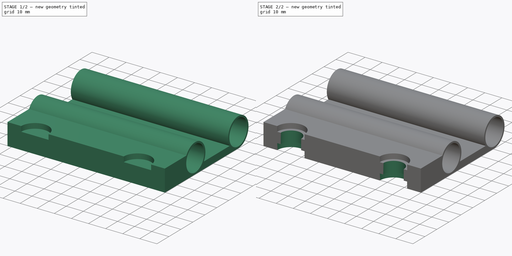
[diagram: build sequence overview — one tinted view per stage of 2, left to right]
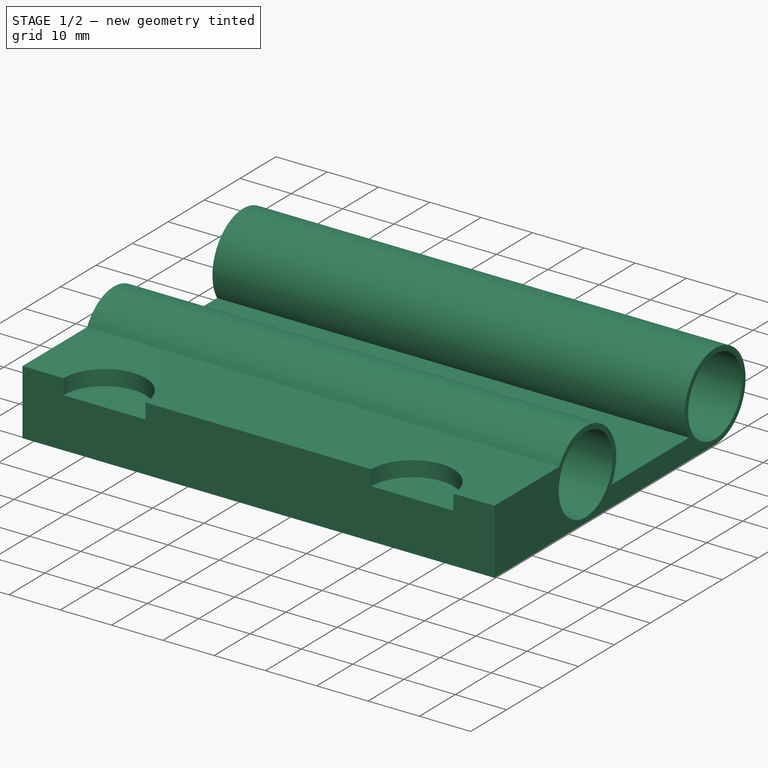
[diagram: stage 1 of 2 — iso view after this stage's code; geometry added in this stage tinted green]
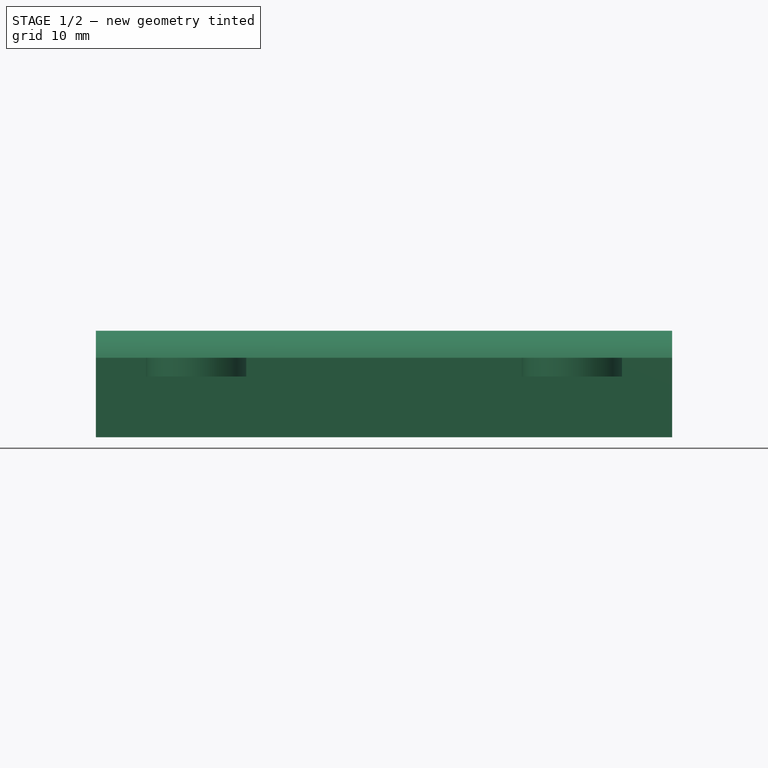
[diagram: stage 1 of 2 — front view after this stage's code; geometry added in this stage tinted green]
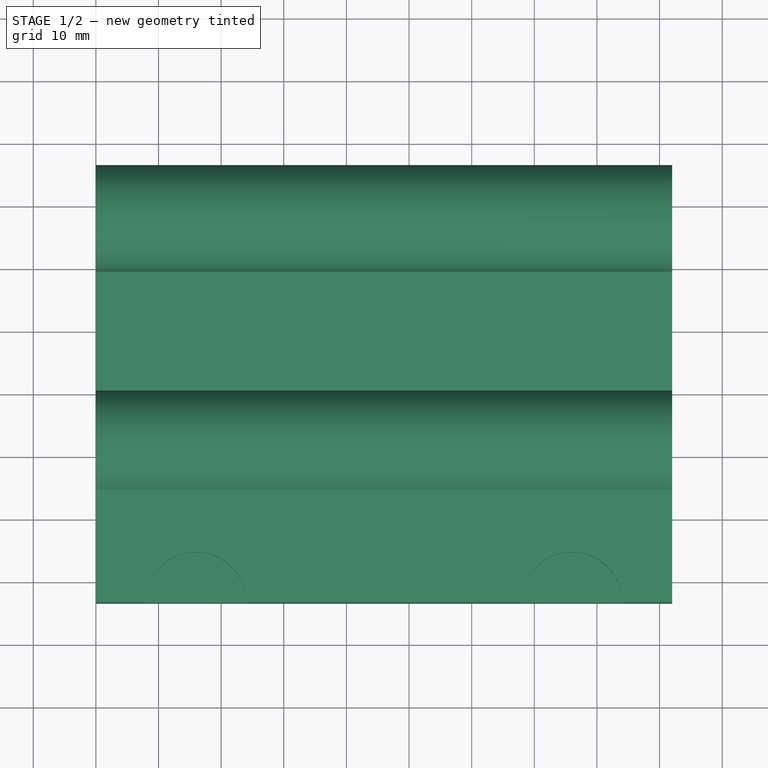
[diagram: stage 1 of 2 — top view after this stage's code; geometry added in this stage tinted green]
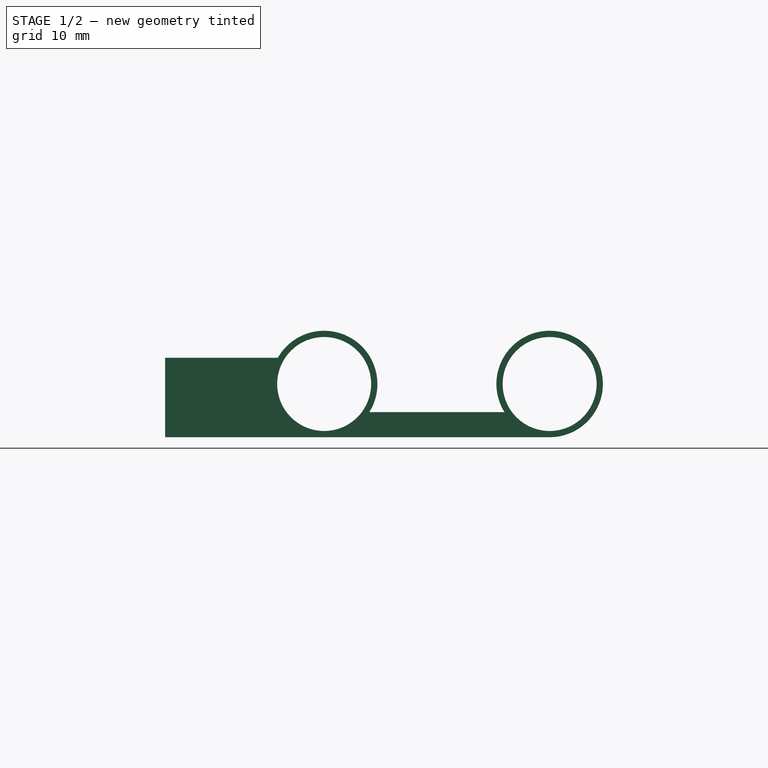
[diagram: stage 1 of 2 — right view after this stage's code; geometry added in this stage tinted green]
FCSTD DOCUMENT  (FreeCAD 0.16RUnknown)
Label: xCarriage-Hotend-pt1
License: All rights reserved
LicenseURL: http://en.wikipedia.org/wiki/All_rights_reserved
objects: Sketcher::SketchObject×4, PartDesign::Pocket×3, PartDesign::Pad×1, App::MeasureDistance×1
note: 12 computed .brp shape members not serialized (recipe doc carries the construction recipe); baked Part::Feature solids carry a one-line shape summary decoded from their .brp

FEATURE [Sketcher::SketchObject] Sketch
  Placement = pos=(0,0,0) rot=(0.57735,0.57735,0.57735;2.0944rad)
  sketch-geometry (10):
    g0: LineSegment StartX=-25.3899 StartY=-4.25 StartZ=0 EndX=18 EndY=-4.25 EndZ=0
    g1: LineSegment StartX=-10.7889 StartY=-0.25 StartZ=0 EndX=10.7889 EndY=-0.25 EndZ=0
    g2: ArcOfCircle CenterX=18 CenterY=4.25 CenterZ=0 NormalX=0 NormalY=0 NormalZ=1 Radius=8.5 StartAngle=4.71239 EndAngle=9.98269
    g3: LineSegment StartX=-25.3899 StartY=-4.25 StartZ=0 EndX=-43.3899 EndY=-4.25 EndZ=0
    g4: LineSegment StartX=-43.3899 StartY=-4.25 StartZ=0 EndX=-43.3899 EndY=8.45 EndZ=0
    g5: LineSegment StartX=-43.3899 StartY=8.45 StartZ=0 EndX=-25.3899 EndY=8.45 EndZ=0
    g6: ArcOfCircle CenterX=-18 CenterY=4.25 CenterZ=0 NormalX=0 NormalY=0 NormalZ=1 Radius=8.5 StartAngle=5.72528 EndAngle=8.90796
    g7: LineSegment [constr] StartX=-18 StartY=4.25 StartZ=0 EndX=18 EndY=4.25 EndZ=0
    g8: Circle CenterX=-18 CenterY=4.25 CenterZ=0 NormalX=0 NormalY=0 NormalZ=1 Radius=7.5
    g9: Circle CenterX=18 CenterY=4.25 CenterZ=0 NormalX=0 NormalY=0 NormalZ=1 Radius=7.5
  constraints (29):
    c: Horizontal(g0)
    c: Horizontal(g1)
    c: Coincident(g2,g0)
    c: Coincident(g2,g1)
    c: Coincident(g0,g3)
    c: Horizontal(g3)
    c: Coincident(g3,g4)
    c: Coincident(g4,g5)
    c: Coincident(g6,g5)
    c: Coincident(g6,g1)
    c: Tangent(g0,g2)
    c: Vertical(g4)
    c: Horizontal(g5)
    c: Radius(g6) = 8.5
    c: Radius(g2) = 8.5
    c: DistanceY(g0,g1) = 4
    c: DistanceY(g4,g4) = 12.7
    c: Coincident(g7,g6)
    c: Coincident(g7,g2)
    c: Horizontal(g7)
    c: DistanceX(g7,g7) = 36
    c: DistanceX(g5,g5) = 18
    c: DistanceX(g3,g3) = 18
    c: DistanceY(g-1,g2) = 4.25
    c: DistanceX(g-1,g2) = 18
    c: Coincident(g8,g6)
    c: Coincident(g9,g2)
    c: Radius(g8) = 7.5
    c: Radius(g9) = 7.5
FEATURE [PartDesign::Pad] Pad
  Length = 92
  Length2 = 100
  Placement = pos=(0,0,0) rot=(0.57735,0.57735,0.57735;2.0944rad)
  Sketch = -> Sketch
  Type = 0
FEATURE [Sketcher::SketchObject] Sketch001
  Placement = pos=(0,0,8.45) rot=(0,0,-1;1.5708rad)
  Support = -> Pad [Face5]
  sketch-geometry (8):
    g0: ArcOfCircle CenterX=43.35 CenterY=16 CenterZ=0 NormalX=0 NormalY=0 NormalZ=1 Radius=8 StartAngle=1.5708 EndAngle=4.71239
    g1: ArcOfCircle CenterX=43.35 CenterY=76 CenterZ=0 NormalX=0 NormalY=0 NormalZ=1 Radius=8 StartAngle=1.5708 EndAngle=4.71239
    g2: LineSegment StartX=43.35 StartY=24 StartZ=0 EndX=50.35 EndY=24 EndZ=0
    g3: LineSegment StartX=50.35 StartY=24 StartZ=0 EndX=50.35 EndY=8 EndZ=0
    g4: LineSegment StartX=50.35 StartY=8 StartZ=0 EndX=43.35 EndY=8 EndZ=0
    g5: LineSegment StartX=43.35 StartY=84 StartZ=0 EndX=59.8351 EndY=84 EndZ=0
    g6: LineSegment StartX=59.8351 StartY=84 StartZ=0 EndX=59.8351 EndY=68 EndZ=0
    g7: LineSegment StartX=59.8351 StartY=68 StartZ=0 EndX=43.35 EndY=68 EndZ=0
  constraints (25):
    c: Radius(g0) = 8
    c: Tangent(g0,g2) = 1.5708
    c: Coincident(g2,g3)
    c: Vertical(g3)
    c: Coincident(g3,g4)
    c: Coincident(g4,g0)
    c: Horizontal(g5)
    c: Coincident(g5,g6)
    c: Coincident(g6,g7)
    c: Coincident(g7,g1)
    c: Horizontal(g2)
    c: Horizontal(g4)
    c: Vertical(g6)
    c: Horizontal(g7)
    c: Radius(g1) = 8
    c: Coincident(g1,g5)
    c: Equal(g2,g4)
    c: Equal(g5,g7)
    c: DistanceX(g2,g2) = 7
    c: DistanceY(g-1,g0) = 8
    c: DistanceY(g0,g1) = 60
    c: DistanceX(g-1,g0) = 43.35
    c: DistanceX(g-1,g1) = 43.35
    c: Tangent(g5,g1)
    c: DistanceX(g5,g5) = 16.4851
FEATURE [PartDesign::Pocket] Pocket
  Length = 3
  Placement = pos=(0,0,0) rot=(0.57735,0.57735,0.57735;2.0944rad)
  Sketch = -> Sketch001
  Type = 0
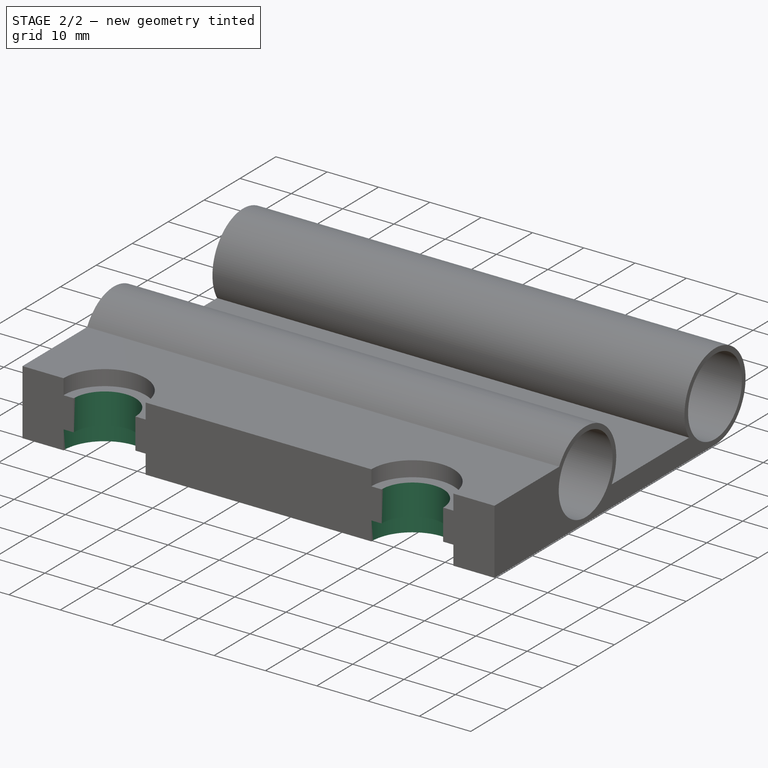
[diagram: stage 2 of 2 — iso view after this stage's code; geometry added in this stage tinted green]
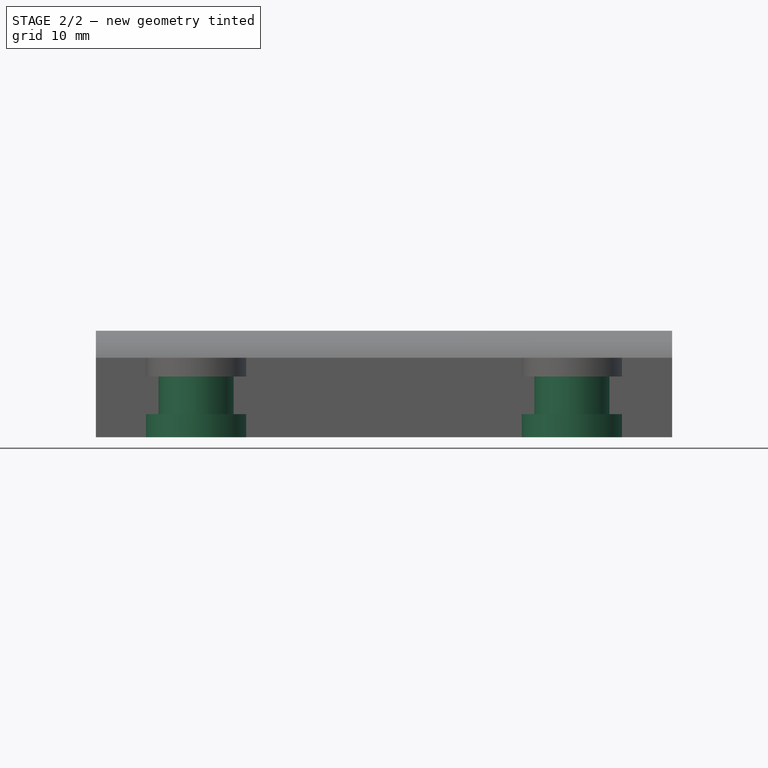
[diagram: stage 2 of 2 — front view after this stage's code; geometry added in this stage tinted green]
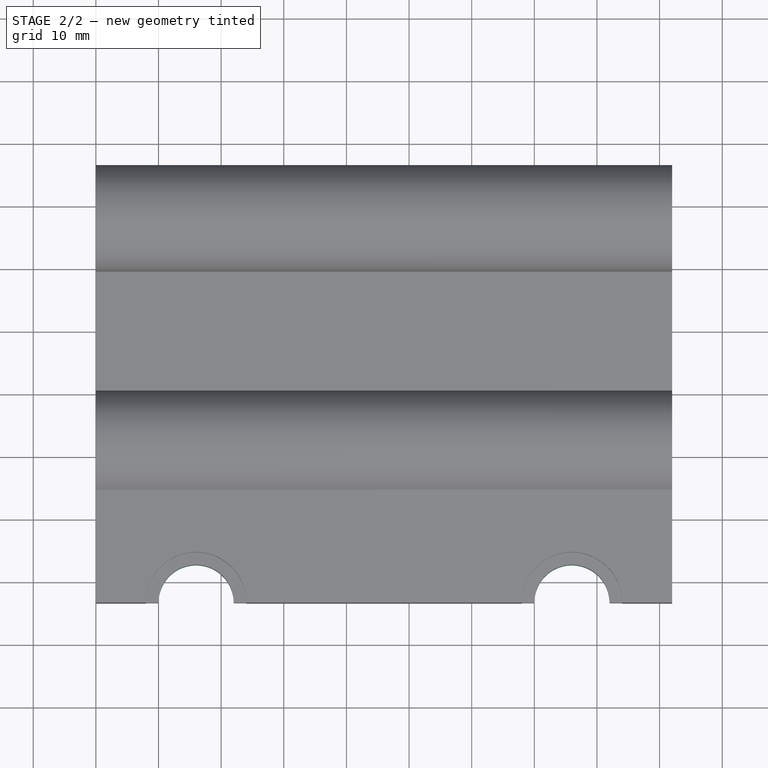
[diagram: stage 2 of 2 — top view after this stage's code; geometry added in this stage tinted green]
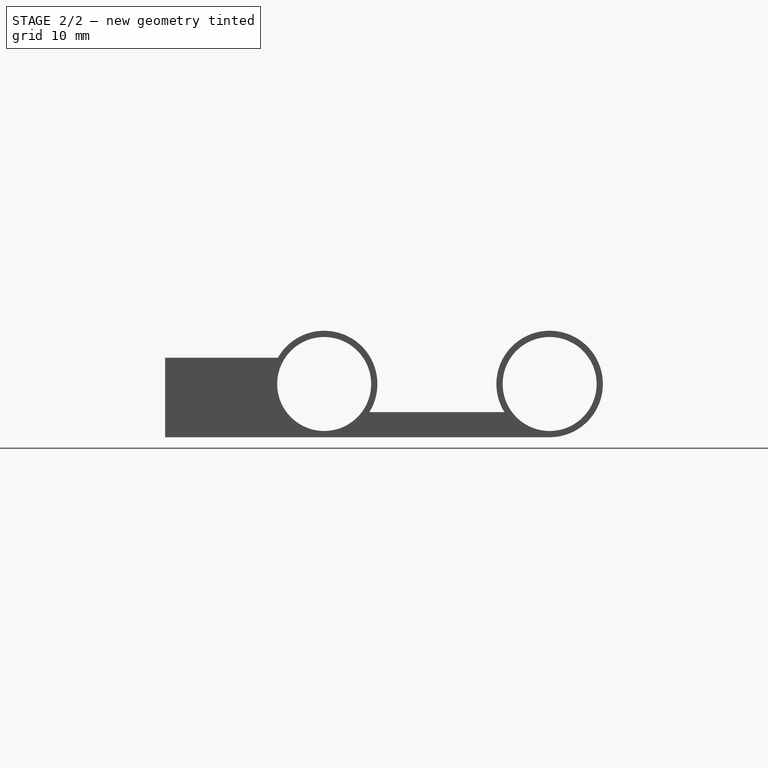
[diagram: stage 2 of 2 — right view after this stage's code; geometry added in this stage tinted green]
FEATURE [Sketcher::SketchObject] Sketch002
  Placement = pos=(0,0,5.45) rot=(0,0,-1;1.5708rad)
  Support = -> Pocket [Face13]
  sketch-geometry (8):
    g0: ArcOfCircle CenterX=43.35 CenterY=16 CenterZ=0 NormalX=0 NormalY=0 NormalZ=1 Radius=6 StartAngle=1.5708 EndAngle=4.71239
    g1: ArcOfCircle CenterX=43.35 CenterY=76 CenterZ=0 NormalX=0 NormalY=0 NormalZ=1 Radius=6 StartAngle=1.5708 EndAngle=4.71238
    g2: LineSegment StartX=43.35 StartY=82 StartZ=0 EndX=53.35 EndY=82 EndZ=0
    g3: LineSegment StartX=53.35 StartY=82 StartZ=0 EndX=53.35 EndY=70 EndZ=0
    g4: LineSegment StartX=53.35 StartY=70 StartZ=0 EndX=43.35 EndY=70 EndZ=0
    g5: LineSegment StartX=43.35 StartY=22 StartZ=0 EndX=53.35 EndY=22 EndZ=0
    g6: LineSegment StartX=53.35 StartY=22 StartZ=0 EndX=53.35 EndY=10 EndZ=0
    g7: LineSegment StartX=53.35 StartY=10 StartZ=0 EndX=43.35 EndY=10 EndZ=0
  constraints (24):
    c: Equal(g1,g0)
    c: Radius(g1) = 6
    c: DistanceX(g0,g0) = 0
    c: DistanceX(g1,g1) = 0
    c: Tangent(g1,g2) = 1.5708
    c: Coincident(g2,g3)
    c: Vertical(g3)
    c: Coincident(g3,g4)
    c: Coincident(g4,g1)
    c: Tangent(g0,g5) = 1.5708
    c: Coincident(g5,g6)
    c: Vertical(g6)
    c: Coincident(g6,g7)
    c: Coincident(g7,g0)
    c: Horizontal(g7)
    c: Horizontal(g4)
    c: DistanceY(g0,g1) = 60
    c: DistanceY(g-1,g0) = 10
    c: DistanceX(g-1,g0) = 43.35
    c: DistanceX(g-1,g1) = 43.35
    c: DistanceX(g2,g2) = 10
    c: DistanceX(g5,g5) = 10
    c: Equal(g7,g5)
    c: Equal(g6,g3)
FEATURE [PartDesign::Pocket] Pocket001
  Length = 5
  Placement = pos=(0,0,0) rot=(0.57735,0.57735,0.57735;2.0944rad)
  Sketch = -> Sketch002
  Type = 1
FEATURE [Sketcher::SketchObject] Sketch003
  Placement = pos=(0,0,-4.25) rot=(0.707107,0.707107,0;3.14159rad)
  Support = -> Pocket001 [Face2]
  sketch-geometry (8):
    g0: ArcOfCircle CenterX=-43.35 CenterY=76 CenterZ=0 NormalX=0 NormalY=0 NormalZ=1 Radius=8 StartAngle=4.71239 EndAngle=7.85398
    g1: ArcOfCircle CenterX=-43.35 CenterY=16 CenterZ=0 NormalX=0 NormalY=0 NormalZ=1 Radius=8 StartAngle=4.71239 EndAngle=7.85398
    g2: LineSegment StartX=-43.35 StartY=84 StartZ=0 EndX=-53.35 EndY=84 EndZ=0
    g3: LineSegment StartX=-53.35 StartY=84 StartZ=0 EndX=-53.35 EndY=68 EndZ=0
    g4: LineSegment StartX=-53.35 StartY=68 StartZ=0 EndX=-43.35 EndY=68 EndZ=0
    g5: LineSegment StartX=-43.35 StartY=24 StartZ=0 EndX=-53.35 EndY=24 EndZ=0
    g6: LineSegment StartX=-53.35 StartY=24 StartZ=0 EndX=-53.35 EndY=8 EndZ=0
    g7: LineSegment StartX=-53.35 StartY=8 StartZ=0 EndX=-43.35 EndY=8 EndZ=0
  constraints (24):
    c: Tangent(g0,g2) = -1.5708
    c: Coincident(g2,g3)
    c: Vertical(g3)
    c: Coincident(g3,g4)
    c: Coincident(g4,g0)
    c: Tangent(g1,g5) = -1.5708
    c: Coincident(g5,g6)
    c: Coincident(g6,g7)
    c: Coincident(g7,g1)
    c: Tangent(g7,g1)
    c: Horizontal(g7)
    c: Horizontal(g5)
    c: Vertical(g6)
    c: Radius(g1) = 8
    c: Equal(g0,g1)
    c: Horizontal(g4)
    c: Horizontal(g2)
    c: Equal(g5,g4)
    c: Equal(g6,g3)
    c: DistanceX(g1,g-1) = 43.35
    c: DistanceY(g1,g0) = 60
    c: DistanceX(g0,g-1) = 43.35
    c: DistanceY(g-1,g1) = 8
    c: DistanceX(g2,g2) = 10
FEATURE [PartDesign::Pocket] Pocket002
  Length = 3.7
  Placement = pos=(0,0,0) rot=(0.57735,0.57735,0.57735;2.0944rad)
  Sketch = -> Sketch003
  Type = 0
FEATURE [App::MeasureDistance] Distance  label="Distance: 12.7 mm"
  Distance = 12.7
  P1 = (0,-43.3899,-4.25)
  P2 = (0,-43.3899,8.45)
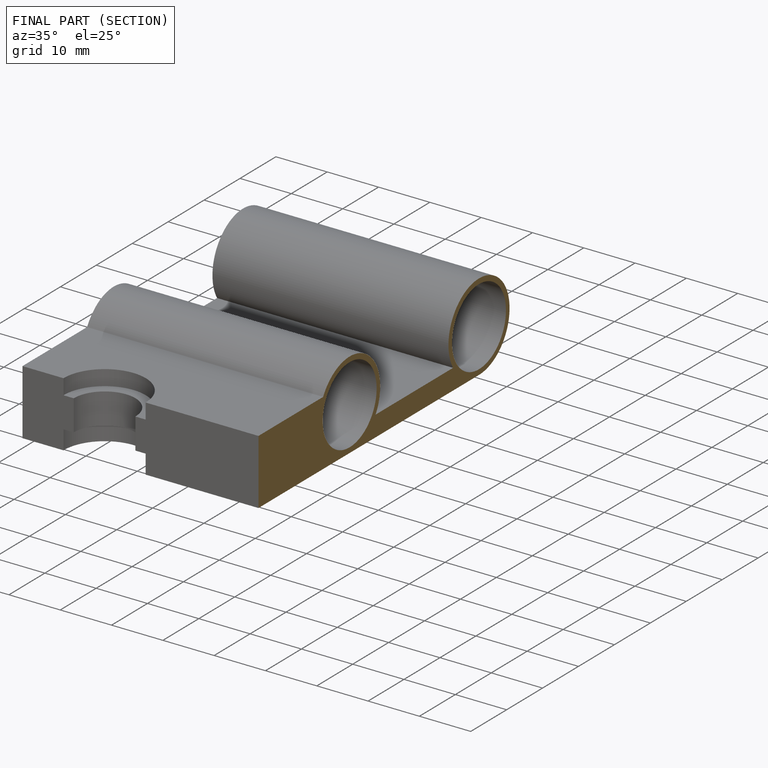
[diagram: finished part — half-section view (interior)]
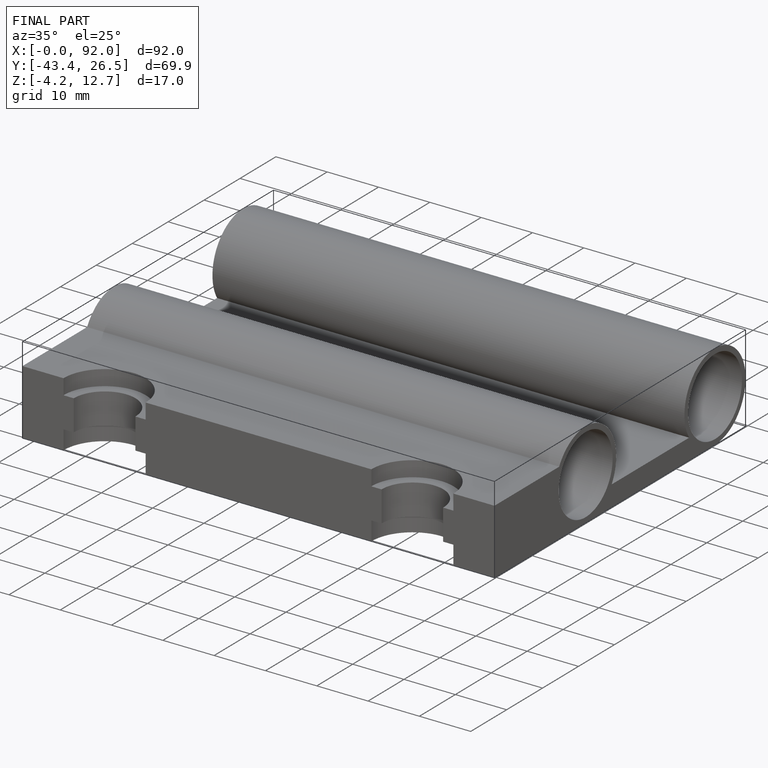
[diagram: finished part — iso view with bounding-box wireframe]
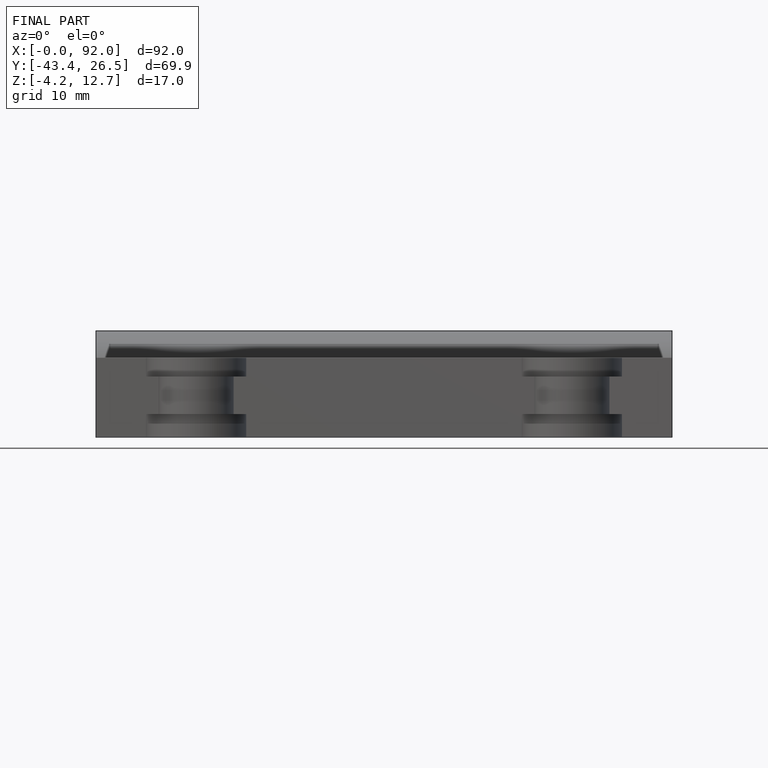
[diagram: finished part — front view with bounding-box wireframe]
